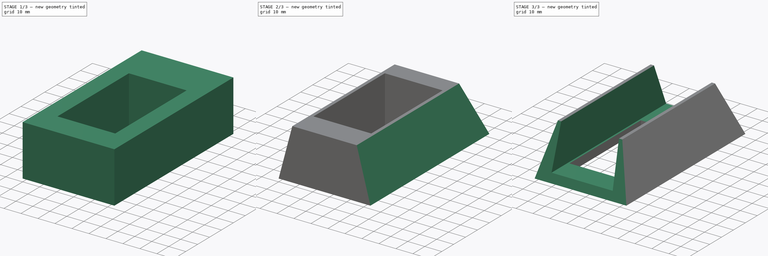
[diagram: build sequence overview — one tinted view per stage of 3, left to right]
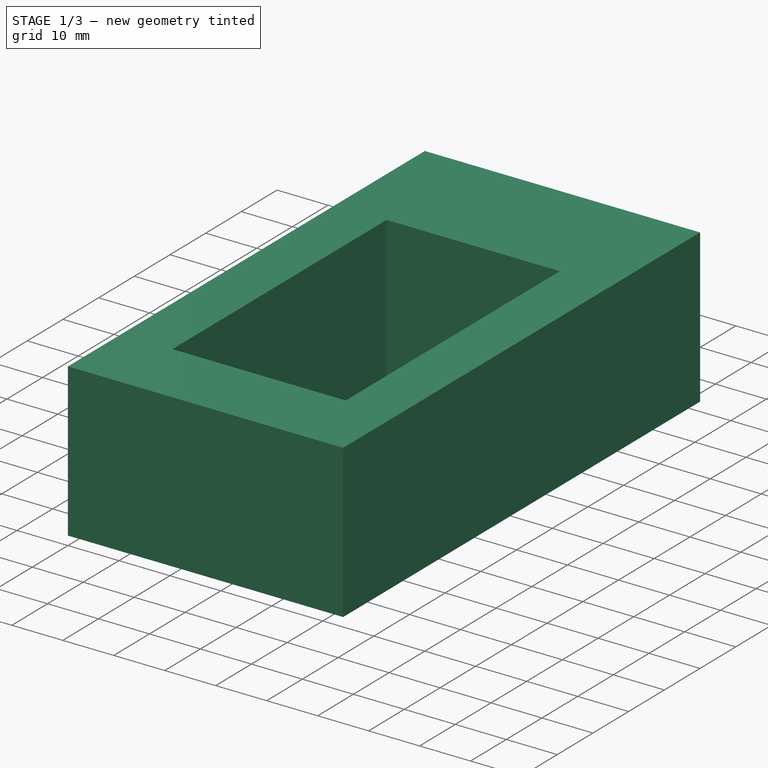
[diagram: stage 1 of 3 — iso view after this stage's code; geometry added in this stage tinted green]
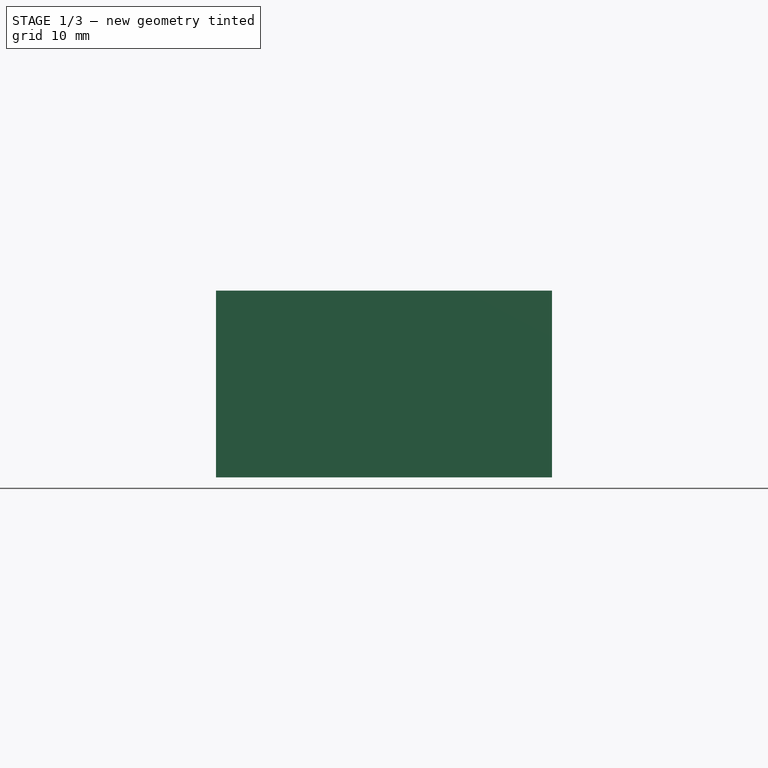
[diagram: stage 1 of 3 — front view after this stage's code; geometry added in this stage tinted green]
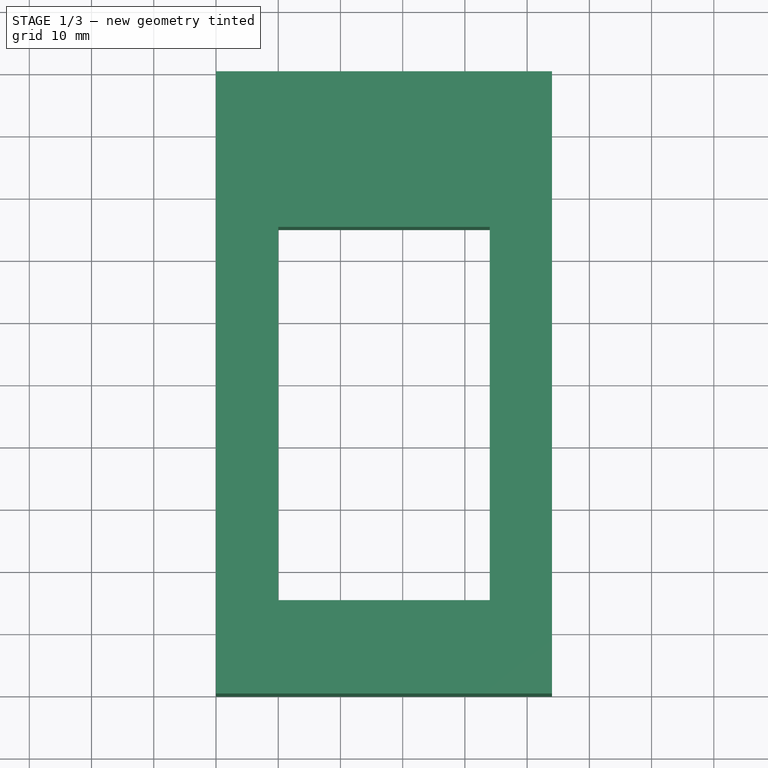
[diagram: stage 1 of 3 — top view after this stage's code; geometry added in this stage tinted green]
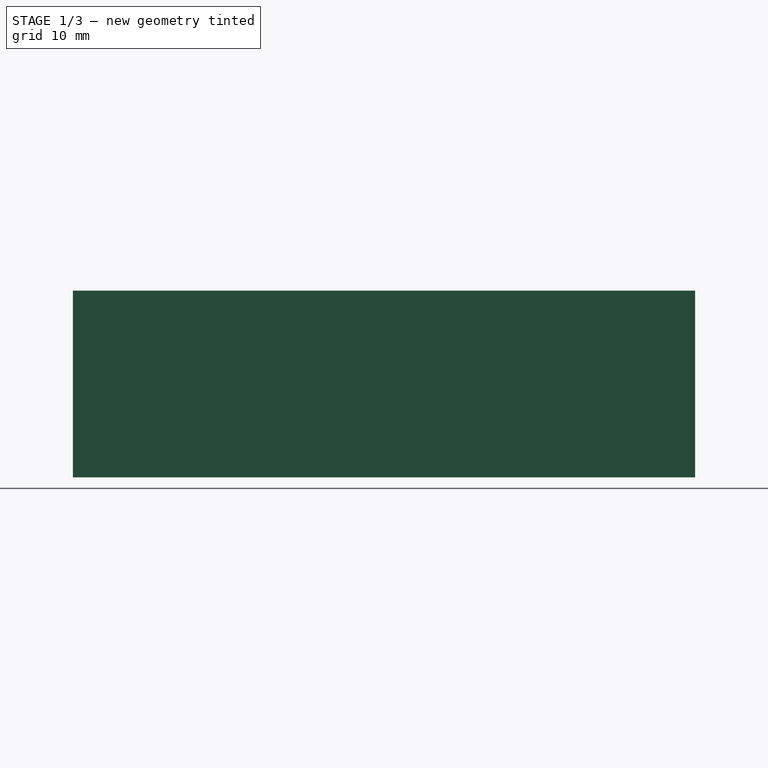
[diagram: stage 1 of 3 — right view after this stage's code; geometry added in this stage tinted green]
FCSTD DOCUMENT  (FreeCAD 0.19R)
Label: m900tinyStand
License: All rights reserved
LicenseURL: http://en.wikipedia.org/wiki/All_rights_reserved
objects: PartDesign::SubtractiveBox×5, Sketcher::SketchObject×1, PartDesign::Pad×1, PartDesign::SubtractiveWedge×1, PartDesign::Body×1
note: 16 computed .brp shape members not serialized (recipe doc carries the construction recipe); baked Part::Feature solids carry a one-line shape summary decoded from their .brp

FEATURE [Sketcher::SketchObject] Sketch
  FullyConstrained = true
  MapMode = 5
  Support = -> [XY_Plane]
  sketch-geometry (8):
    g0: LineSegment StartX=0 StartY=0 StartZ=0 EndX=54 EndY=0 EndZ=0
    g1: LineSegment StartX=54 StartY=0 StartZ=0 EndX=54 EndY=100 EndZ=0
    g2: LineSegment StartX=54 StartY=100 StartZ=0 EndX=0 EndY=100 EndZ=0
    g3: LineSegment StartX=0 StartY=100 StartZ=0 EndX=0 EndY=0 EndZ=0
    g4: LineSegment StartX=10 StartY=15 StartZ=0 EndX=44 EndY=15 EndZ=0
    g5: LineSegment StartX=44 StartY=15 StartZ=0 EndX=44 EndY=80 EndZ=0
    g6: LineSegment StartX=44 StartY=80 StartZ=0 EndX=10 EndY=80 EndZ=0
    g7: LineSegment StartX=10 StartY=80 StartZ=0 EndX=10 EndY=15 EndZ=0
  constraints (23):
    c: Coincident(g0,g1)
    c: Coincident(g1,g2)
    c: Coincident(g2,g3)
    c: Coincident(g3,g0)
    c: Horizontal(g0)
    c: Horizontal(g2)
    c: Vertical(g1)
    c: Vertical(g3)
    c: Coincident(g0,g-1)
    c: DistanceY(g1,g1) = 100
    c: DistanceX(g0,g0) = 54
    c: Coincident(g4,g5)
    c: Coincident(g5,g6)
    c: Coincident(g6,g7)
    c: Coincident(g7,g4)
    c: Horizontal(g4)
    c: Horizontal(g6)
    c: Vertical(g5)
    c: Vertical(g7)
    c: DistanceX(g4,g4) = 34
    c: DistanceX(g2,g6) = 10
    c: DistanceY(g6,g2) = 20
    c: DistanceY(g0,g4) = 15
FEATURE [PartDesign::Pad] Pad
  Direction = (1,1,1)
  Length = 30
  Length2 = 100
  Profile = -> Sketch
  Refine = true
  Type = 0
FEATURE [PartDesign::SubtractiveBox] Box
  AttacherType = Attacher::AttachEngine3D
  AttachmentOffset = pos=(10,15,-30) rot=(0,0,1;0rad)
  BaseFeature = -> Pad
  Height = 30
  Length = 34
  MapMode = 5
  Placement = pos=(10,15,0) rot=(0,0,1;0rad)
  Refine = true
  Support = -> [Pad]
  Width = 60
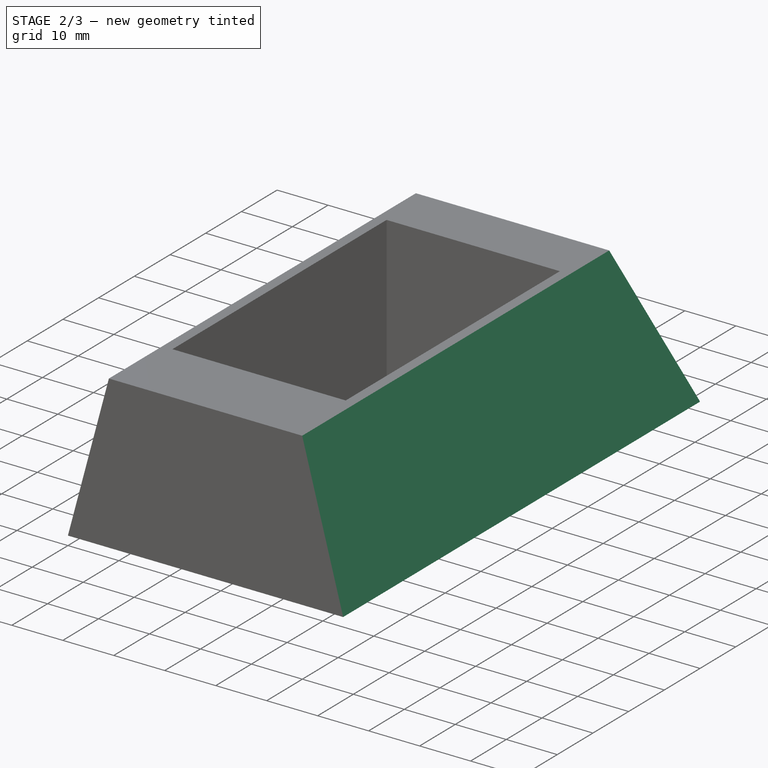
[diagram: stage 2 of 3 — iso view after this stage's code; geometry added in this stage tinted green]
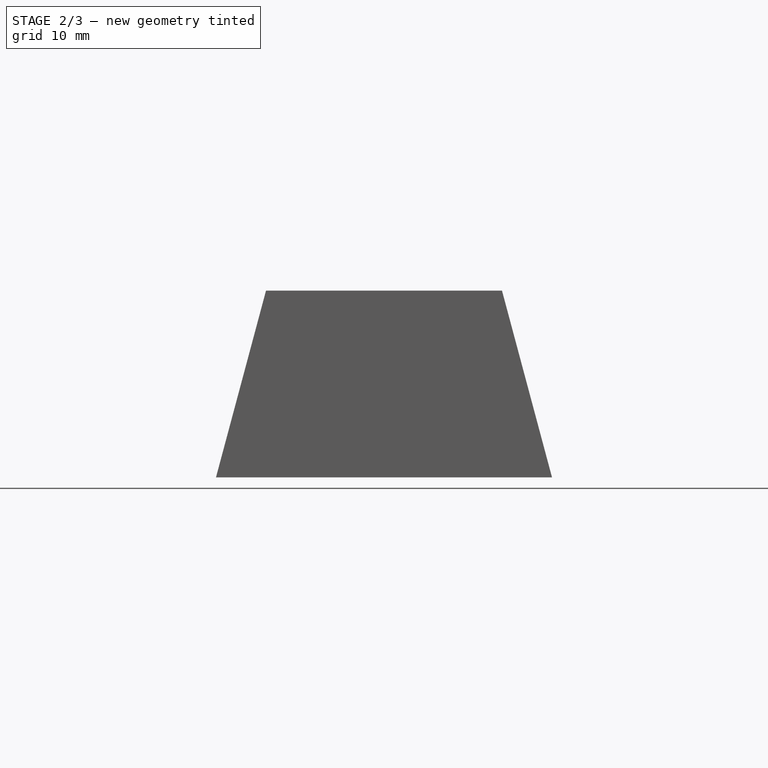
[diagram: stage 2 of 3 — front view after this stage's code; geometry added in this stage tinted green]
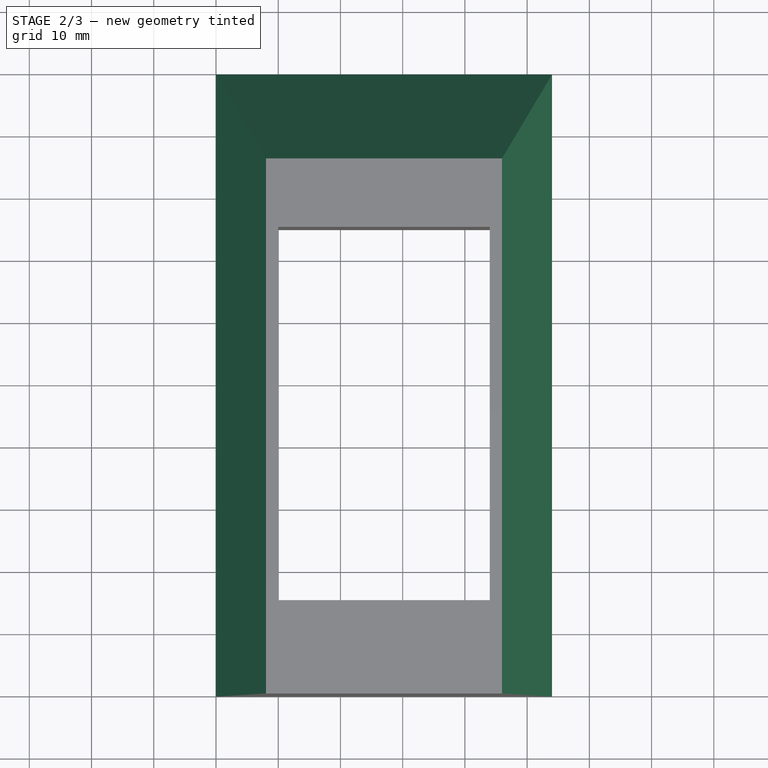
[diagram: stage 2 of 3 — top view after this stage's code; geometry added in this stage tinted green]
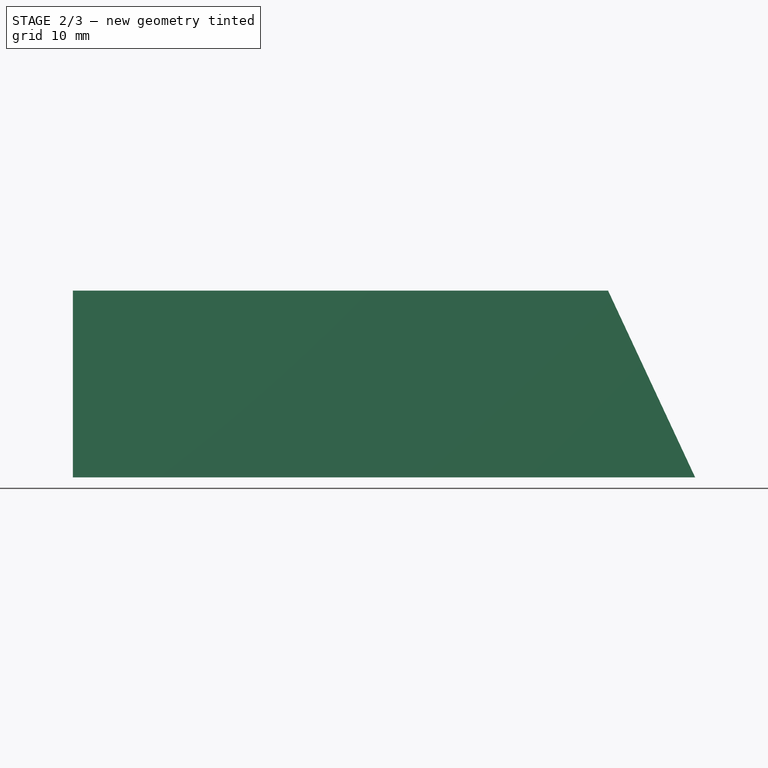
[diagram: stage 2 of 3 — right view after this stage's code; geometry added in this stage tinted green]
FEATURE [PartDesign::SubtractiveBox] Box001
  AttacherType = Attacher::AttachEngine3D
  AttachmentOffset = pos=(-85,0,0) rot=(-1,0,0;0.261799rad)
  BaseFeature = -> Box
  Height = 10
  Length = 100
  MapMode = 5
  Placement = pos=(0,100,0) rot=(0.519988,-0.519988,-0.677661;1.95044rad)
  Refine = true
  Support = -> [Box]
  Width = 32
FEATURE [PartDesign::SubtractiveBox] Box003
  AttacherType = Attacher::AttachEngine3D
  AttachmentOffset = pos=(-55,0,100) rot=(-1,0,0;0.436332rad)
  BaseFeature = -> Box001
  Height = 19
  Length = 55
  MapMode = 5
  Placement = pos=(55,100,-2.22e-14) rot=(0,0.5373,0.843391;3.14159rad)
  Refine = true
  Support = -> [XZ_Plane]
  Width = 52
FEATURE [PartDesign::SubtractiveBox] Box004
  AttacherType = Attacher::AttachEngine3D
  AttachmentOffset = pos=(0,0,54) rot=(-1,0,0;0.261799rad)
  BaseFeature = -> Box003
  Height = 10
  Length = 100
  MapMode = 5
  Placement = pos=(54,-1.2e-14,1.2e-14) rot=(0.519988,0.519988,0.677661;1.95044rad)
  Refine = true
  Support = -> [YZ_Plane]
  Width = 34
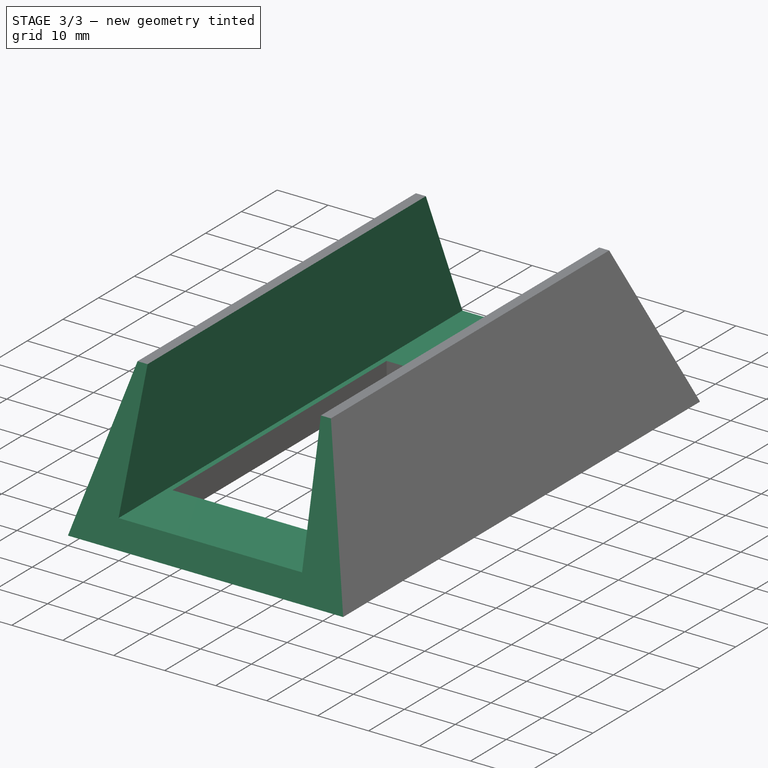
[diagram: stage 3 of 3 — iso view after this stage's code; geometry added in this stage tinted green]
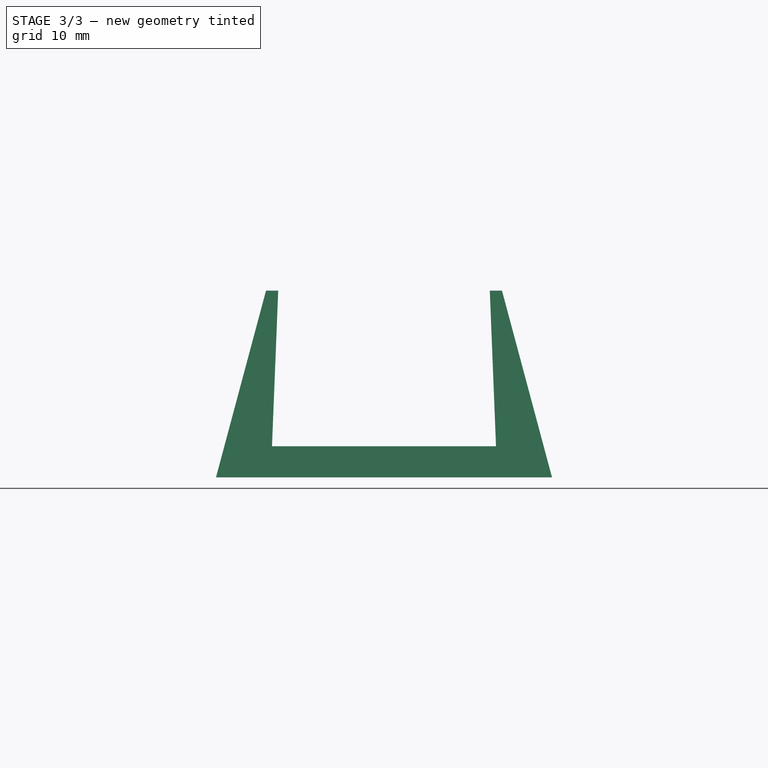
[diagram: stage 3 of 3 — front view after this stage's code; geometry added in this stage tinted green]
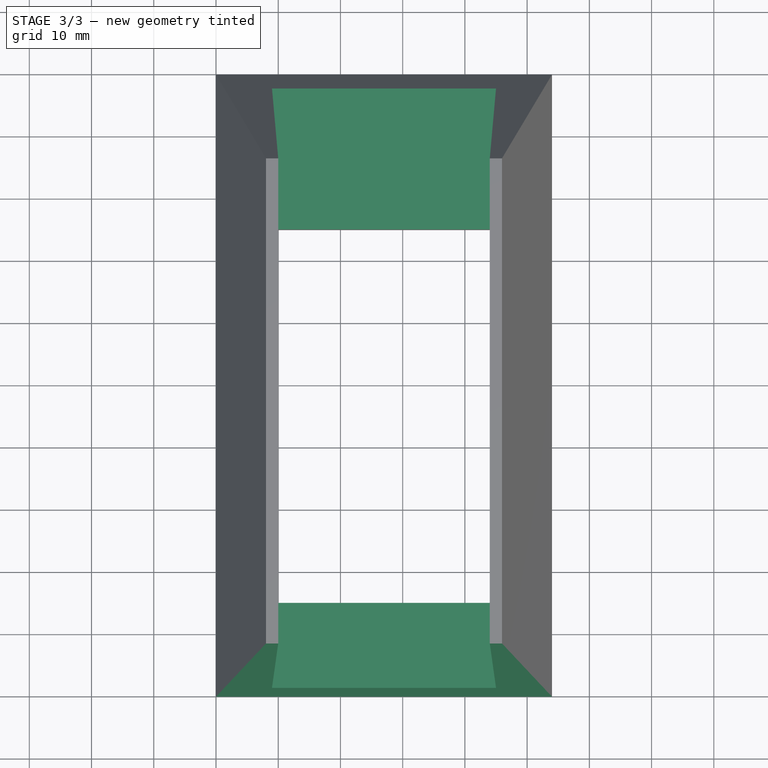
[diagram: stage 3 of 3 — top view after this stage's code; geometry added in this stage tinted green]
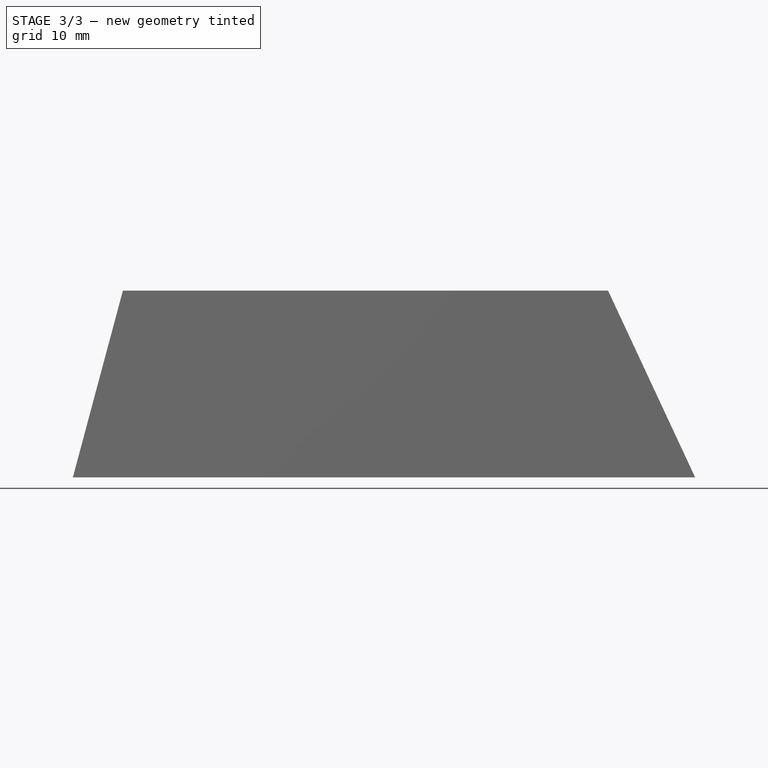
[diagram: stage 3 of 3 — right view after this stage's code; geometry added in this stage tinted green]
FEATURE [PartDesign::SubtractiveBox] Box005
  AttacherType = Attacher::AttachEngine3D
  AttachmentOffset = pos=(0,0,0) rot=(-1,0,0;0.261799rad)
  BaseFeature = -> Box004
  Height = 14
  Length = 58
  MapMode = 5
  Placement = pos=(0,0,0) rot=(1,0,0;1.309rad)
  Refine = true
  Support = -> [XZ_Plane]
  Width = 36
FEATURE [PartDesign::SubtractiveWedge] Wedge
  AttacherType = Attacher::AttachEngine3D
  AttachmentOffset = pos=(10,20,-10) rot=(0,0,1;0rad)
  BaseFeature = -> Box005
  MapMode = 5
  Placement = pos=(10,10,20) rot=(1,0,0;1.5708rad)
  Refine = true
  Support = -> [XZ_Plane]
  X2max = 34
  X2min = 0
  Xmax = 35
  Xmin = -1
  Ymax = 10
  Ymin = -15
  Z2max = 10
  Z2min = -91
  Zmax = 10
  Zmin = -93
FEATURE [PartDesign::Body] Body
  Group = -> [Sketch,Pad,Box,Box001,Box003,Box004,Box005,Wedge]
  Origin = -> Origin
  Tip = -> Wedge
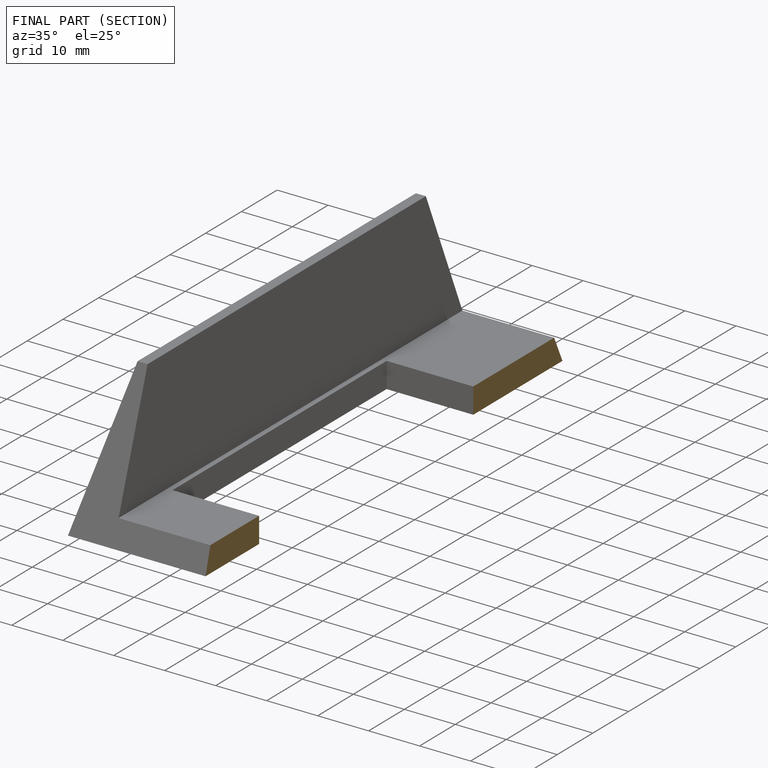
[diagram: finished part — half-section view (interior)]
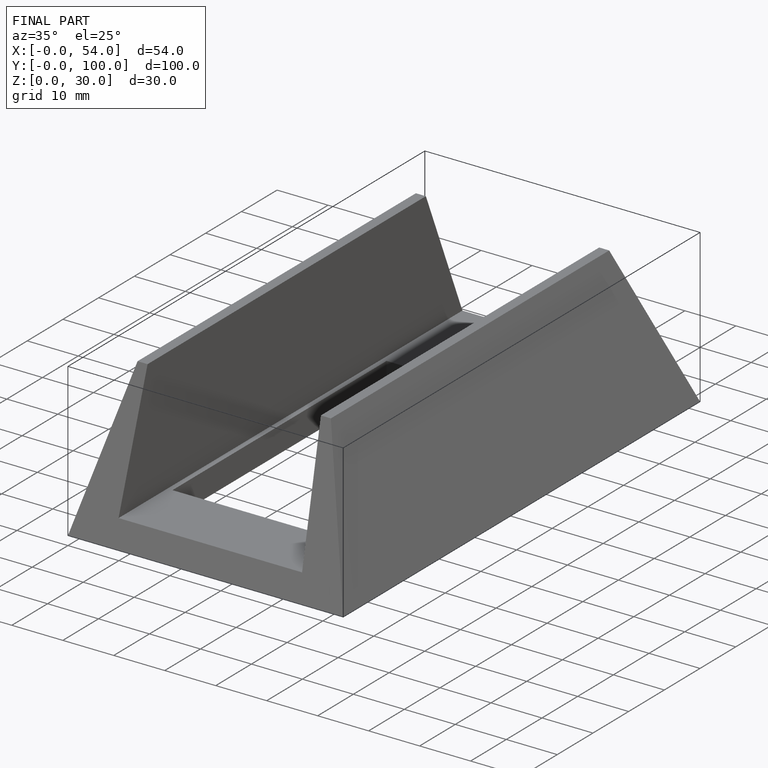
[diagram: finished part — iso view with bounding-box wireframe]
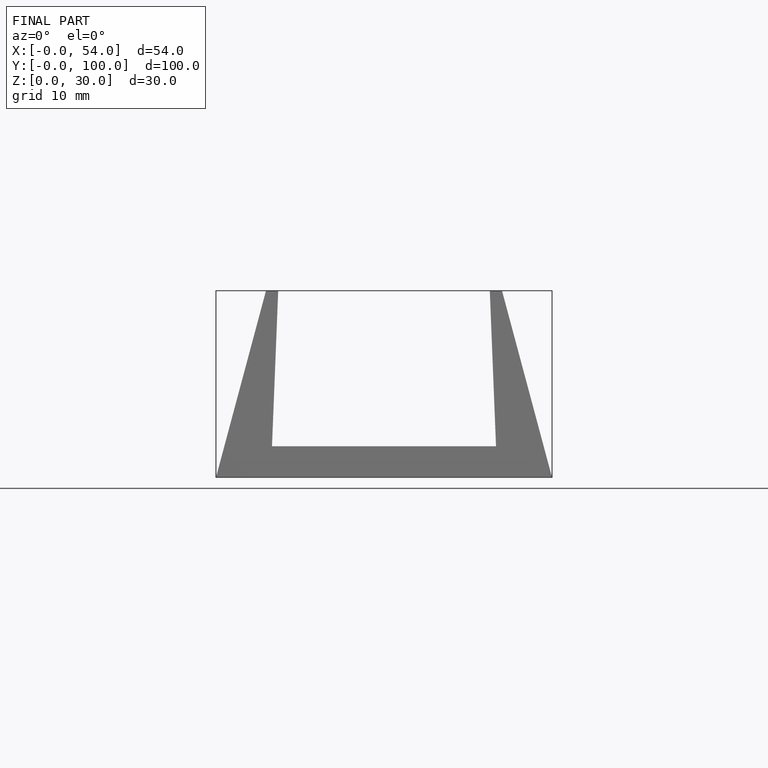
[diagram: finished part — front view with bounding-box wireframe]
